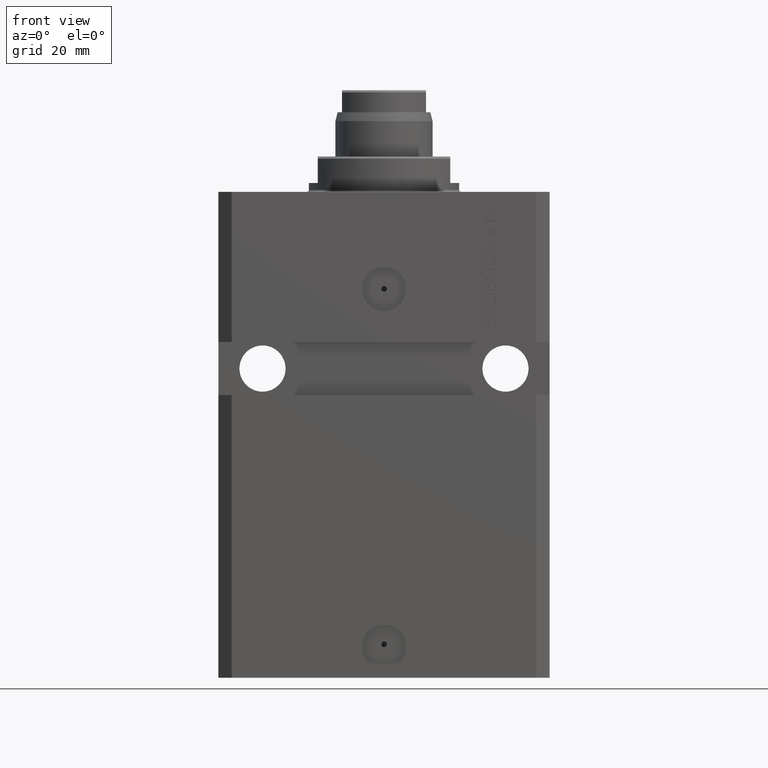
[diagram: clean part render]
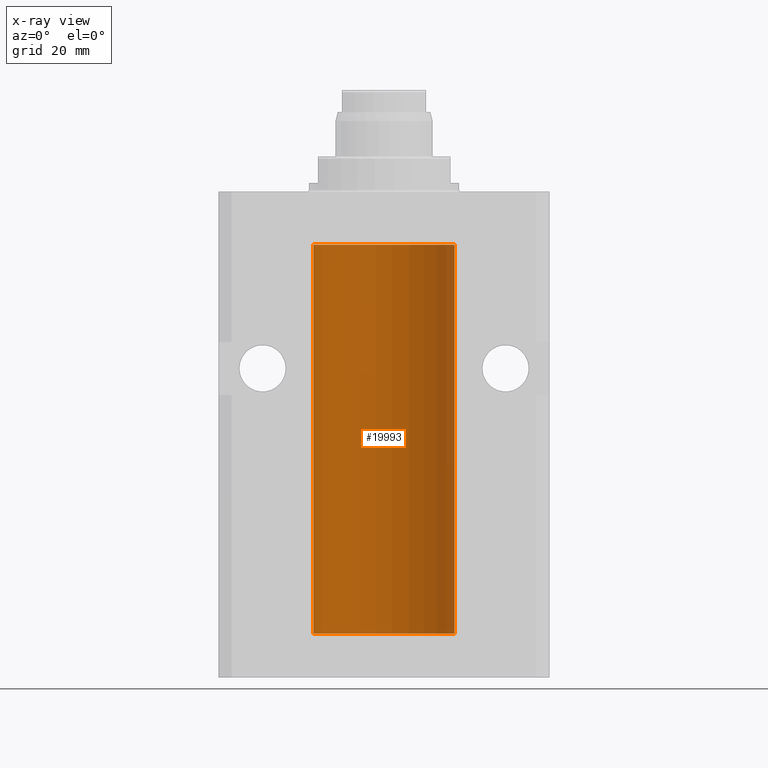
[diagram: x-ray — body ghosted, one internal face saturated and labeled with its STEP entity id]
A machine part, front view, then the same camera in x-ray: the body is ghosted and one INTERNAL B-rep face — a face not visible from any outside direction — is saturated and labeled: STEP entity #19993.
In plain terms, the highlighted cylindrical surface (partial cylindrical patch) has radius 16 mm, axis along (0, 0, 1).
Its self-contained STEP definition (entity closure, byte-faithful):
#831 = EDGE_CURVE ( 'NONE', #8331, #4611, #13445, .T. ) ;
#1380 = VECTOR ( 'NONE', #9054, 1000.000000000000000 ) ;
#1665 = CARTESIAN_POINT ( 'NONE',  ( 15.98778830858070954, 0.6250000000079481977, -21.99999999999914735 ) ) ;
#1730 = CIRCLE ( 'NONE', #34223, 16.00000000000000000 ) ;
#1875 = CARTESIAN_POINT ( 'NONE',  ( 15.99070366873610283, 0.5574063959867601170, -98.32639436837558833 ) ) ;
#1931 = DIRECTION ( 'NONE',  ( -0.000000000000000000, -0.000000000000000000, 1.000000000000000000 ) ) ;
#2100 = AXIS2_PLACEMENT_3D ( 'NONE', #31382, #21183, #46247 ) ;
#2711 = FACE_OUTER_BOUND ( 'NONE', #38218, .T. ) ;
#3535 = DIRECTION ( 'NONE',  ( -0.000000000000000000, -0.000000000000000000, 1.000000000000000000 ) ) ;
#4416 = CARTESIAN_POINT ( 'NONE',  ( 15.99999999999999645, 0.08261762387942306329, -22.62499999999997868 ) ) ;
#4611 = VERTEX_POINT ( 'NONE', #13167 ) ;
#4727 = EDGE_CURVE ( 'NONE', #22059, #21693, #1730, .T. ) ;
#4880 = VERTEX_POINT ( 'NONE', #41421 ) ;
#5073 = DIRECTION ( 'NONE',  ( 1.000000000000000000, 0.000000000000000000, 0.000000000000000000 ) ) ;
#5667 = CARTESIAN_POINT ( 'NONE',  ( 16.00000000000001066, 0.08261762387943044628, -98.62500000000001421 ) ) ;
#6178 = CARTESIAN_POINT ( 'NONE',  ( 15.98778830858070954, 0.6250000000080517815, -97.99999999999916156 ) ) ;
#7039 = CIRCLE ( 'NONE', #42546, 16.00000000000000000 ) ;
#7041 = ORIENTED_EDGE ( 'NONE', *, *, #16934, .T. ) ;
#7082 = CARTESIAN_POINT ( 'NONE',  ( 15.99228275317786441, 0.5002975944204781644, -97.61642014570176684 ) ) ;
#7743 = CARTESIAN_POINT ( 'NONE',  ( 15.99934183755191341, 0.1636877470526797440, -22.60872690654067796 ) ) ;
#8331 = VERTEX_POINT ( 'NONE', #6178 ) ;
#8755 = CARTESIAN_POINT ( 'NONE',  ( 15.99548458234361448, 0.3844468804816183471, -98.49947786696355934 ) ) ;
#9054 = DIRECTION ( 'NONE',  ( -0.000000000000000000, -0.000000000000000000, 1.000000000000000000 ) ) ;
#9222 = CARTESIAN_POINT ( 'NONE',  ( 15.98778830858070954, 0.6250000000080517815, -97.99999999999916156 ) ) ;
#9391 = CARTESIAN_POINT ( 'NONE',  ( 15.99999999999998934, 0.1631343969470015198, -21.37500000000020961 ) ) ;
#10643 = CARTESIAN_POINT ( 'NONE',  ( 15.98844460043491367, 0.6087869699337551399, -97.83657454967556077 ) ) ;
#13167 = CARTESIAN_POINT ( 'NONE',  ( 16.00000000000013145, 3.665532692826917502E-13, -97.37499999999657518 ) ) ;
#13371 = CYLINDRICAL_SURFACE ( 'NONE', #2100, 16.00000000000000000 ) ;
#13393 = CARTESIAN_POINT ( 'NONE',  ( 15.98844460043492077, 0.6087869699336542206, -21.83657454967558209 ) ) ;
#13445 = B_SPLINE_CURVE_WITH_KNOTS ( 'NONE', 3,
 ( #46607, #29122, #10643, #39524, #7082, #21544, #43525, #17985 ),
 .UNSPECIFIED., .F., .F.,
 ( 4, 2, 2, 4 ),
 ( 0.0009773326288700682433, 0.001221554802188685399, 0.001465776975507302772, 0.001954221322144537518 ),
 .UNSPECIFIED. ) ;
#14612 = CARTESIAN_POINT ( 'NONE',  ( 16.00000000000000000, -1.835653844722709729E-15, -98.62500000000000000 ) ) ;
#15035 = CARTESIAN_POINT ( 'NONE',  ( 0.000000000000000000, 0.000000000000000000, -99.99999999999998579 ) ) ;
#15903 = LINE ( 'NONE', #41475, #1380 ) ;
#16934 = EDGE_CURVE ( 'NONE', #36759, #22680, #34846, .T. ) ;
#17486 = ORIENTED_EDGE ( 'NONE', *, *, #24997, .T. ) ;
#17751 = LINE ( 'NONE', #32889, #31830 ) ;
#17985 = CARTESIAN_POINT ( 'NONE',  ( 16.00000000000013145, 3.665532692826917502E-13, -97.37499999999657518 ) ) ;
#18643 = CARTESIAN_POINT ( 'NONE',  ( 15.99070366873610993, 0.5574063959866684126, -22.32639436837550306 ) ) ;
#18757 = B_SPLINE_CURVE_WITH_KNOTS ( 'NONE', 3,
 ( #29538, #4416, #7743, #22196, #36629, #18643, #25056, #43933 ),
 .UNSPECIFIED., .F., .F.,
 ( 4, 2, 2, 4 ),
 ( 3.199434161265750614E-18, 0.0002443331572174949973, 0.0004886663144349868504, 0.0009773326288699782545 ),
 .UNSPECIFIED. ) ;
#19167 = ORIENTED_EDGE ( 'NONE', *, *, #43992, .T. ) ;
#19647 = CARTESIAN_POINT ( 'NONE',  ( 15.99707608081895138, 0.3151028052310259620, -98.54594170697734512 ) ) ;
#19993 = ADVANCED_FACE ( 'NONE', ( #2711 ), #13371, .F. ) ;
#20239 = ORIENTED_EDGE ( 'NONE', *, *, #31005, .T. ) ;
#20305 = VECTOR ( 'NONE', #1931, 1000.000000000000000 ) ;
#21183 = DIRECTION ( 'NONE',  ( -0.000000000000000000, -0.000000000000000000, 1.000000000000000000 ) ) ;
#21378 = VERTEX_POINT ( 'NONE', #1665 ) ;
#21544 = CARTESIAN_POINT ( 'NONE',  ( 15.99711856062700477, 0.3252985083514284281, -97.44140297987712529 ) ) ;
#21693 = VERTEX_POINT ( 'NONE', #30514 ) ;
#22059 = VERTEX_POINT ( 'NONE', #28724 ) ;
#22196 = CARTESIAN_POINT ( 'NONE',  ( 15.99707608081895138, 0.3151028052309821081, -22.54594170697727051 ) ) ;
#22420 = B_SPLINE_CURVE_WITH_KNOTS ( 'NONE', 3,
 ( #23207, #5667, #26522, #19647, #8755, #1875, #37403, #9222 ),
 .UNSPECIFIED., .F., .F.,
 ( 4, 2, 2, 4 ),
 ( 1.783888443149829469E-18, 0.0002443331572175257886, 0.0004886663144350497342, 0.0009773326288700682433 ),
 .UNSPECIFIED. ) ;
#22554 = EDGE_CURVE ( 'NONE', #22059, #43378, #17751, .T. ) ;
#22680 = VERTEX_POINT ( 'NONE', #43754 ) ;
#23207 = CARTESIAN_POINT ( 'NONE',  ( 16.00000000000000000, -1.835653844722709729E-15, -98.62500000000000000 ) ) ;
#23981 = CARTESIAN_POINT ( 'NONE',  ( 16.00000000000000000, 0.000000000000000000, -99.99999999999998579 ) ) ;
#24997 = EDGE_CURVE ( 'NONE', #21378, #36759, #46207, .T. ) ;
#25056 = CARTESIAN_POINT ( 'NONE',  ( 15.98778830858101685, 0.6250000000001205702, -22.16311639173018833 ) ) ;
#26522 = CARTESIAN_POINT ( 'NONE',  ( 15.99934183755190986, 0.1636877470527013101, -98.60872690654072414 ) ) ;
#27033 = CARTESIAN_POINT ( 'NONE',  ( 16.00000000000013145, 3.665532680419208314E-13, -21.37499999999658229 ) ) ;
#27869 = CARTESIAN_POINT ( 'NONE',  ( 15.99711856062700122, 0.3252985083513914577, -21.44140297987715016 ) ) ;
#27912 = EDGE_CURVE ( 'NONE', #22680, #4880, #7039, .T. ) ;
#28724 = CARTESIAN_POINT ( 'NONE',  ( 16.00000000000000000, 0.000000000000000000, -99.99999999999998579 ) ) ;
#28904 = VERTEX_POINT ( 'NONE', #41408 ) ;
#29122 = CARTESIAN_POINT ( 'NONE',  ( 15.98778830858103817, 0.6249999999997223332, -97.91847885046210820 ) ) ;
#29538 = CARTESIAN_POINT ( 'NONE',  ( 16.00000000000000000, 2.111103446002389479E-15, -22.62500000000000000 ) ) ;
#29590 = DIRECTION ( 'NONE',  ( 0.000000000000000000, 0.000000000000000000, 1.000000000000000000 ) ) ;
#30514 = CARTESIAN_POINT ( 'NONE',  ( -16.00000000000000000, 1.959434878635765131E-15, -99.99999999999998579 ) ) ;
#30702 = CARTESIAN_POINT ( 'NONE',  ( 16.00000000000013145, 3.665532680419208314E-13, -21.37499999999658229 ) ) ;
#31005 = EDGE_CURVE ( 'NONE', #28904, #21378, #18757, .T. ) ;
#31066 = LINE ( 'NONE', #31300, #20305 ) ;
#31300 = CARTESIAN_POINT ( 'NONE',  ( -16.00000000000000000, 1.959434878635765131E-15, -99.99999999999998579 ) ) ;
#31382 = CARTESIAN_POINT ( 'NONE',  ( 0.000000000000000000, 0.000000000000000000, -99.99999999999998579 ) ) ;
#31481 = ORIENTED_EDGE ( 'NONE', *, *, #43890, .F. ) ;
#31830 = VECTOR ( 'NONE', #3535, 1000.000000000000000 ) ;
#32889 = CARTESIAN_POINT ( 'NONE',  ( 16.00000000000000000, 0.000000000000000000, -99.99999999999998579 ) ) ;
#33030 = DIRECTION ( 'NONE',  ( 0.000000000000000000, 0.000000000000000000, 1.000000000000000000 ) ) ;
#34223 = AXIS2_PLACEMENT_3D ( 'NONE', #15035, #33030, #5073 ) ;
#34240 = CARTESIAN_POINT ( 'NONE',  ( 15.98778830858103817, 0.6249999999996181943, -21.91847885046212951 ) ) ;
#34480 = CARTESIAN_POINT ( 'NONE',  ( 15.99228275317787151, 0.5002975944204001157, -21.61642014570180947 ) ) ;
#34846 = LINE ( 'NONE', #23981, #36011 ) ;
#34936 = CARTESIAN_POINT ( 'NONE',  ( 15.98778830858070954, 0.6250000000079481977, -21.99999999999914735 ) ) ;
#35468 = ORIENTED_EDGE ( 'NONE', *, *, #4727, .F. ) ;
#36011 = VECTOR ( 'NONE', #37942, 1000.000000000000000 ) ;
#36629 = CARTESIAN_POINT ( 'NONE',  ( 15.99548458234361803, 0.3844468804815586727, -22.49947786696350960 ) ) ;
#36759 = VERTEX_POINT ( 'NONE', #27033 ) ;
#37403 = CARTESIAN_POINT ( 'NONE',  ( 15.98778830858101685, 0.6250000000002223777, -98.16311639173024162 ) ) ;
#37942 = DIRECTION ( 'NONE',  ( -0.000000000000000000, -0.000000000000000000, 1.000000000000000000 ) ) ;
#38218 = EDGE_LOOP ( 'NONE', ( #31481, #35468, #41187, #41176, #46817, #19167, #20239, #17486, #7041, #38776 ) ) ;
#38776 = ORIENTED_EDGE ( 'NONE', *, *, #27912, .T. ) ;
#39524 = CARTESIAN_POINT ( 'NONE',  ( 15.99070695999103542, 0.5461439696927204990, -97.68526802364048933 ) ) ;
#40010 = CARTESIAN_POINT ( 'NONE',  ( 0.000000000000000000, 0.000000000000000000, -12.00000000000000000 ) ) ;
#41176 = ORIENTED_EDGE ( 'NONE', *, *, #44207, .T. ) ;
#41187 = ORIENTED_EDGE ( 'NONE', *, *, #22554, .T. ) ;
#41408 = CARTESIAN_POINT ( 'NONE',  ( 16.00000000000000000, 2.111103446002389479E-15, -22.62500000000000000 ) ) ;
#41421 = CARTESIAN_POINT ( 'NONE',  ( -16.00000000000000000, 1.959434878635765131E-15, -12.00000000000000000 ) ) ;
#41475 = CARTESIAN_POINT ( 'NONE',  ( 16.00000000000000000, 0.000000000000000000, -99.99999999999998579 ) ) ;
#41570 = CARTESIAN_POINT ( 'NONE',  ( 15.99070695999104252, 0.5461439696926365661, -21.68526802364053196 ) ) ;
#42546 = AXIS2_PLACEMENT_3D ( 'NONE', #40010, #29590, #43988 ) ;
#43378 = VERTEX_POINT ( 'NONE', #14612 ) ;
#43525 = CARTESIAN_POINT ( 'NONE',  ( 15.99999999999999645, 0.1631343969470158417, -97.37500000000021316 ) ) ;
#43754 = CARTESIAN_POINT ( 'NONE',  ( 16.00000000000000000, 0.000000000000000000, -12.00000000000000000 ) ) ;
#43890 = EDGE_CURVE ( 'NONE', #21693, #4880, #31066, .T. ) ;
#43933 = CARTESIAN_POINT ( 'NONE',  ( 15.98778830858070954, 0.6250000000079481977, -21.99999999999914735 ) ) ;
#43988 = DIRECTION ( 'NONE',  ( 1.000000000000000000, 0.000000000000000000, 0.000000000000000000 ) ) ;
#43992 = EDGE_CURVE ( 'NONE', #4611, #28904, #15903, .T. ) ;
#44207 = EDGE_CURVE ( 'NONE', #43378, #8331, #22420, .T. ) ;
#46207 = B_SPLINE_CURVE_WITH_KNOTS ( 'NONE', 3,
 ( #34936, #34240, #13393, #41570, #34480, #27869, #9391, #30702 ),
 .UNSPECIFIED., .F., .F.,
 ( 4, 2, 2, 4 ),
 ( 0.0009773326288699782545, 0.001221554802188574377, 0.001465776975507170283, 0.001954221322144355372 ),
 .UNSPECIFIED. ) ;
#46247 = DIRECTION ( 'NONE',  ( 1.000000000000000000, 0.000000000000000000, 0.000000000000000000 ) ) ;
#46607 = CARTESIAN_POINT ( 'NONE',  ( 15.98778830858070954, 0.6250000000080517815, -97.99999999999916156 ) ) ;
#46817 = ORIENTED_EDGE ( 'NONE', *, *, #831, .T. ) ;